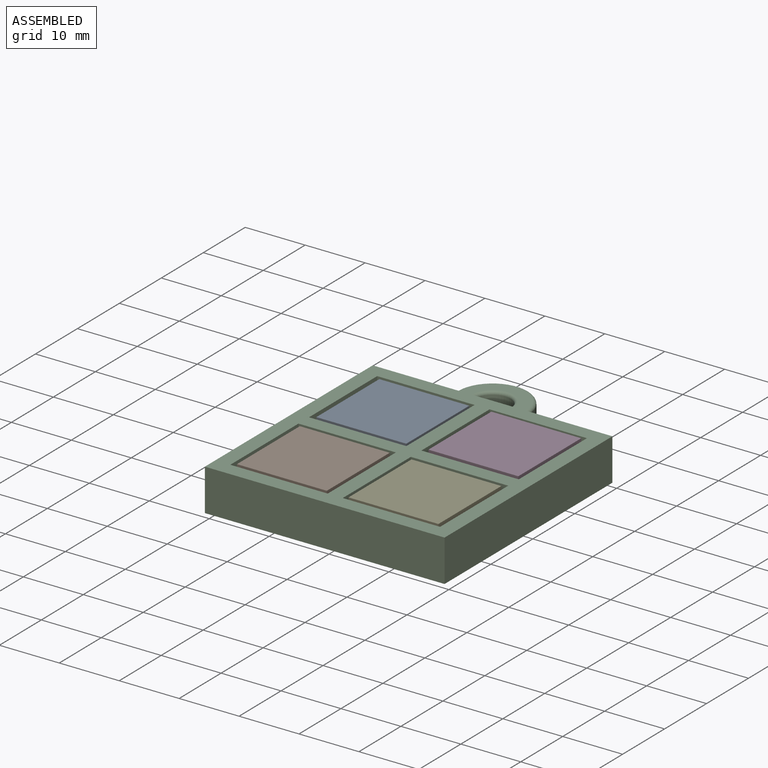
[diagram: assembled view]
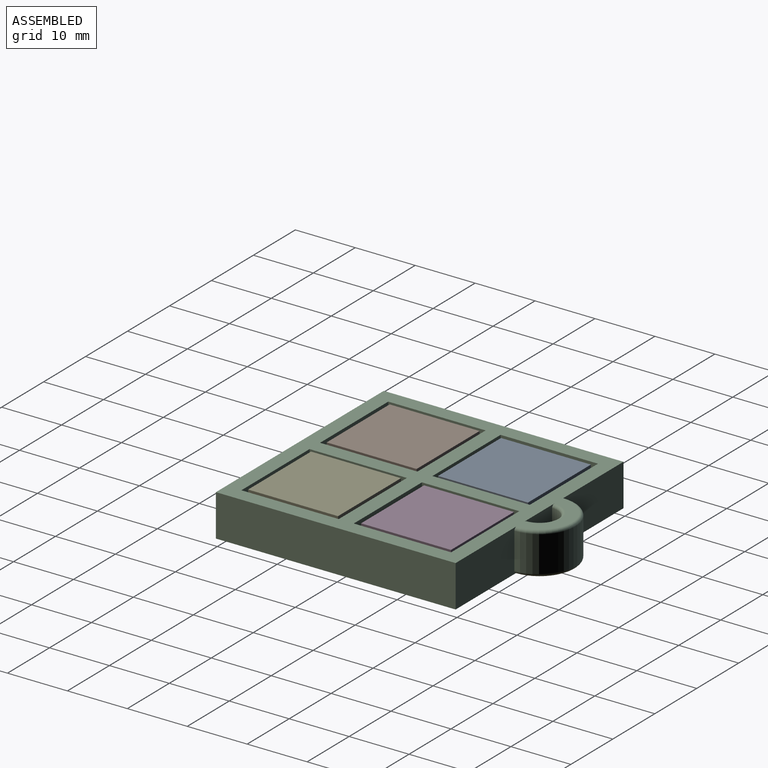
[diagram: assembled view, second angle]
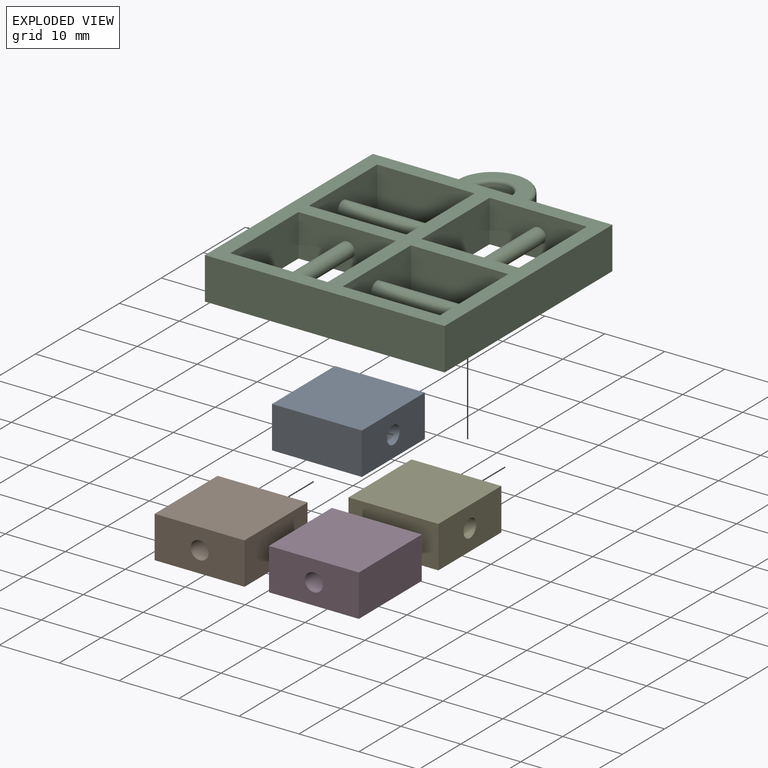
[diagram: exploded view]
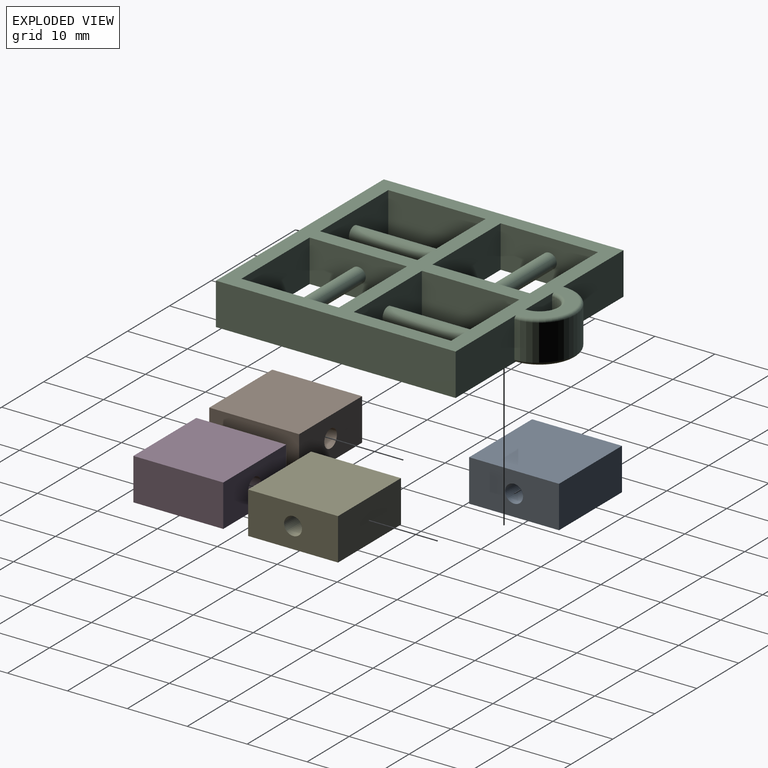
[diagram: exploded view, second angle]
ASSEMBLY  parts=5 mates=4
PART A: 7 faces, bbox 15x15x7 mm
  f0: plane 15x7mm, normal (0,1,0), area 105mm2, adj f1,f3,f4,f5
  f1: plane 15x7mm, normal (-1,0,0), area 97.9mm2, adj f0,f2,f4,f5,f6
  f2: plane 15x7mm, normal (0,-1,0), area 105mm2, adj f1,f3,f4,f5
  f3: plane 15x7mm, normal (1,0,0), area 97.9mm2, adj f0,f2,f4,f5,f6
  f4: plane 15x15mm, normal (0,0,1), area 225mm2, adj f0,f1,f2,f3
  f5: plane 15x15mm, normal (0,0,-1), area 225mm2, adj f0,f1,f2,f3
  f6: cylinder r=1.5mm len=15mm, axis (1,0,0), area 141.4mm2, adj f1,f3
PART B: same geometry as A
PART C: 34 faces, bbox 40x46.5x7 mm
  f0: plane 14.5x7mm, normal (0,1,0), area 98.1mm2, adj f21,f22,f23,f28,f30,f32
  f1: plane 7x7mm, normal (0,1,0), area 42.2mm2, adj f22,f23,f29,f31,f33
  f2: plane 14.5x7mm, normal (0,1,0), area 98.1mm2, adj f3,f22,f23,f28,f30,f32
  f3: plane 40x7mm, normal (-1,0,0), area 280mm2, adj f2,f4,f22,f23
  f4: plane 40x7mm, normal (0,-1,0), area 280mm2, adj f3,f21,f22,f23
  f5: plane 16.25x7mm, normal (0,1,0), area 108.8mm2, adj f6,f17,f22,f23,f25
  f6: plane 16.25x7mm, normal (1,0,0), area 113.8mm2, adj f5,f7,f22,f23
  f7: plane 16.25x7mm, normal (0,-1,0), area 108.8mm2, adj f6,f17,f22,f23,f25
  f8: plane 16.25x7mm, normal (1,0,0), area 108.8mm2, adj f9,f18,f22,f23,f27
  f9: plane 16.25x7mm, normal (0,-1,0), area 113.8mm2, adj f8,f10,f22,f23
  f10: plane 16.25x7mm, normal (-1,0,0), area 108.8mm2, adj f9,f18,f22,f23,f27
  f11: plane 16.25x7mm, normal (0,-1,0), area 108.8mm2, adj f12,f19,f22,f23,f26
  f12: plane 16.25x7mm, normal (-1,0,0), area 113.8mm2, adj f11,f13,f22,f23
  f13: plane 16.25x7mm, normal (0,1,0), area 108.8mm2, adj f12,f19,f22,f23,f26
  f14: plane 16.25x7mm, normal (1,0,0), area 108.8mm2, adj f15,f20,f22,f23,f24
  f15: plane 16.25x7mm, normal (0,-1,0), area 113.8mm2, adj f14,f16,f22,f23
  f16: plane 16.25x7mm, normal (-1,0,0), area 108.8mm2, adj f15,f20,f22,f23,f24
  f17: plane 16.25x7mm, normal (-1,0,0), area 113.8mm2, adj f5,f7,f22,f23
  f18: plane 16.25x7mm, normal (0,1,0), area 113.8mm2, adj f8,f10,f22,f23
  f19: plane 16.25x7mm, normal (1,0,0), area 113.8mm2, adj f11,f13,f22,f23
  f20: plane 16.25x7mm, normal (0,1,0), area 113.8mm2, adj f14,f16,f22,f23
  f21: plane 40x7mm, normal (1,0,0), area 280mm2, adj f0,f4,f22,f23
  f22: plane 45.5x40mm, normal (0,0,1), area 572mm2, adj f0,f1,f2,f3,f4,f5,f6,f7
  f23: plane 45.5x40mm, normal (0,0,-1), area 572mm2, adj f0,f1,f2,f3,f4,f5,f6,f7
  f24: cylinder r=1.25mm len=16.25mm, axis (-1,0,0), area 127.6mm2, adj f14,f16
  f25: cylinder r=1.25mm len=16.25mm, axis (0,-1,0), area 127.6mm2, adj f5,f7
  f26: cylinder r=1.25mm len=16.25mm, axis (0,-1,0), area 127.6mm2, adj f11,f13
  f27: cylinder r=1.25mm len=16.25mm, axis (1,0,0), area 127.6mm2, adj f8,f10
  f28: cylinder r=6mm len=12mm, axis (0,0,1), area 113.1mm2, adj f0,f2,f30,f32
  f29: cylinder r=3mm len=6mm, axis (0,0,1), area 56.5mm2, adj f1,f31,f33
  f30: torus R=5.5mm, axis (0,0,1), area 14.4mm2, adj f0,f2,f23,f28
  f31: torus R=3.5mm, axis (0,0,1), area 7.9mm2, adj f1,f23,f29
  f32: torus R=5.5mm, axis (0,0,1), area 14.4mm2, adj f0,f2,f22,f28
  f33: torus R=3.5mm, axis (0,0,1), area 7.9mm2, adj f1,f22,f29
PART D: same geometry as A
PART E: same geometry as A
PLACE A t=(-19.58,8.89,6.93)mm
PLACE B rot(axis=(0,0,-1),90deg) t=(-19.75,-9.81,6.93)mm
PLACE C t=(-10.37,-0.49,6.93)mm
PLACE D rot(axis=(0,0,-1),90deg) t=(-1,9.05,6.93)mm
PLACE E t=(-1.09,-9.86,6.93)mm
MATE cylindrical D.f6 <-> C.f25  axis (0,-1,0) through (-1,1.55,10.43)mm
MATE cylindrical B.f6 <-> C.f26  axis (0,1,0) through (-19.75,-2.31,10.43)mm
MATE cylindrical A.f6 <-> C.f24  axis (-1,0,0) through (-27.08,8.89,10.43)mm
MATE cylindrical E.f6 <-> C.f27  axis (-1,0,0) through (-8.59,-9.86,10.43)mm
